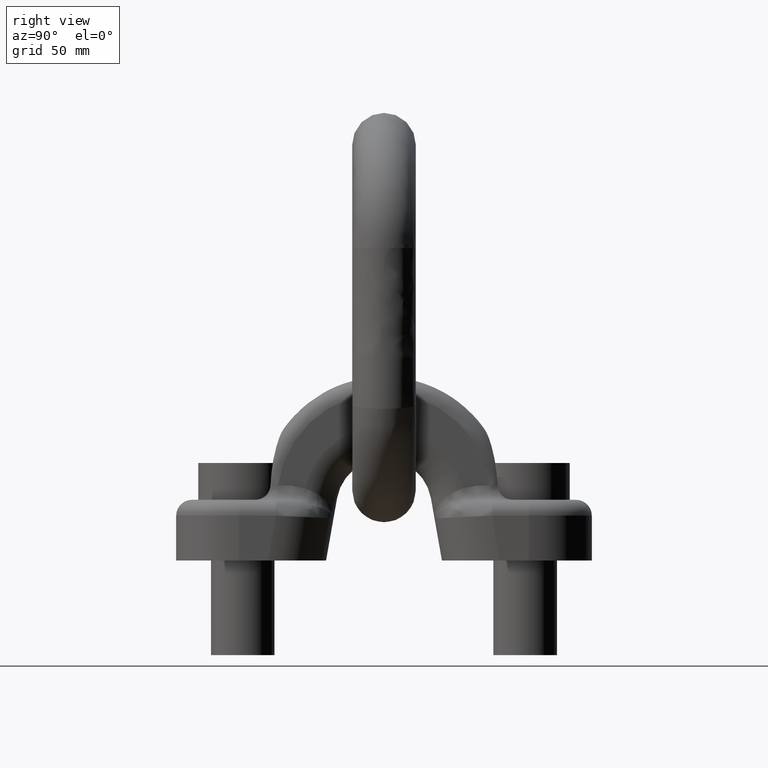
[diagram: clean part render]
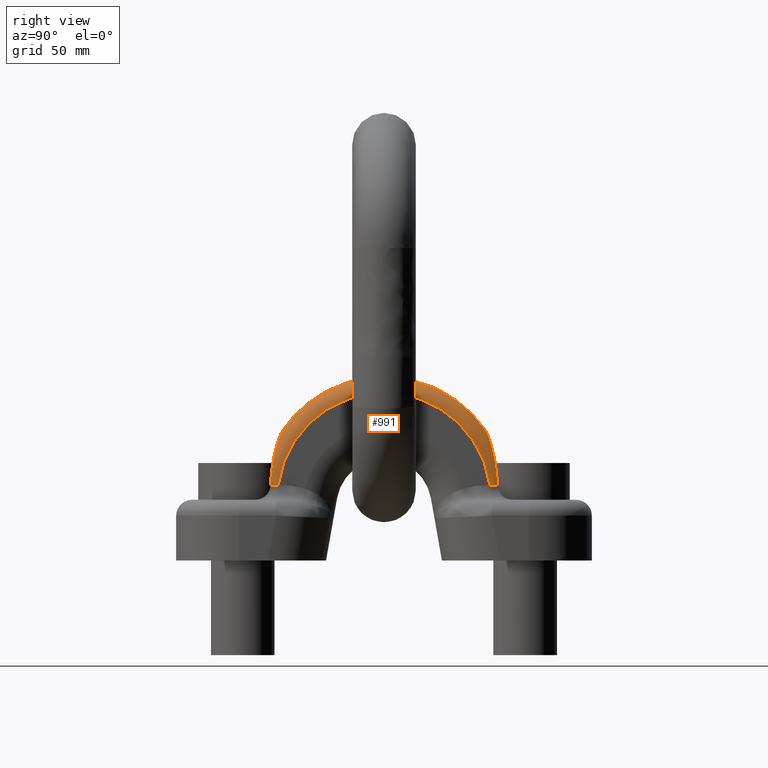
[diagram: same view with one face highlighted and labeled with its STEP entity id]
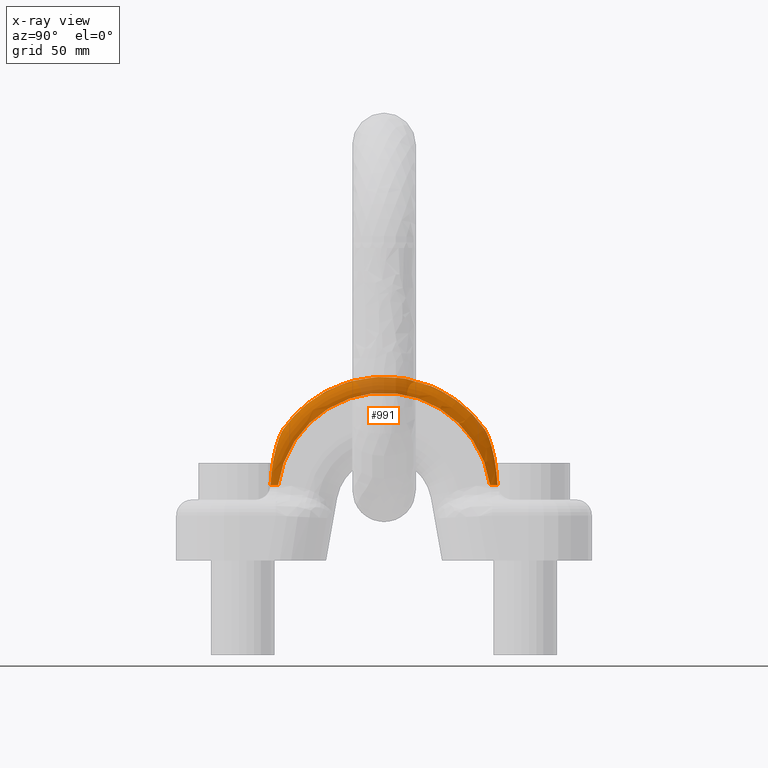
[diagram: x-ray of the same camera — body ghosted, the highlighted face saturated]
A machine part, right view. The second image highlights one B-rep face of the part: STEP entity #991.
The next image is the same camera in x-ray: the body ghosted, the highlighted face saturated — about 17% of this face is hidden behind the body in this view.
In plain terms, the highlighted toroidal blend (fillet) surface has major radius 75.75 mm and minor (blend) radius 11.25 mm.
Its self-contained STEP definition (entity closure, byte-faithful):
#831=TOROIDAL_SURFACE('',#3641,75.75,11.25);
#839=FACE_OUTER_BOUND('',#1526,.T.);
#991=ADVANCED_FACE('',(#839),#831,.T.);
#1526=EDGE_LOOP('',(#2127,#2128,#2129,#2130,#2131,#2132,#2133,#2134,#2135,
#2136,#2137,#2138,#2139,#2140));
#1763=B_SPLINE_CURVE_WITH_KNOTS('',3,(#4961,#4962,#4963,#4964),
 .UNSPECIFIED.,.F.,.F.,(4,4),(0.,1.),.UNSPECIFIED.);
#1764=B_SPLINE_CURVE_WITH_KNOTS('',3,(#4965,#4966,#4967,#4968,#4969,#4970,
#4971,#4972,#4973,#4974),.UNSPECIFIED.,.F.,.F.,(4,2,2,2,4),(0.,0.500000000000001,
0.75,0.875,1.),.UNSPECIFIED.);
#1765=B_SPLINE_CURVE_WITH_KNOTS('',3,(#4976,#4977,#4978,#4979),
 .UNSPECIFIED.,.F.,.F.,(4,4),(0.,1.),.UNSPECIFIED.);
#1766=B_SPLINE_CURVE_WITH_KNOTS('',3,(#4981,#4982,#4983,#4984),
 .UNSPECIFIED.,.F.,.F.,(4,4),(0.,1.),.UNSPECIFIED.);
#1767=B_SPLINE_CURVE_WITH_KNOTS('',3,(#4988,#4989,#4990,#4991),
 .UNSPECIFIED.,.F.,.F.,(4,4),(0.,1.),.UNSPECIFIED.);
#1768=B_SPLINE_CURVE_WITH_KNOTS('',3,(#4993,#4994,#4995,#4996),
 .UNSPECIFIED.,.F.,.F.,(4,4),(0.,1.),.UNSPECIFIED.);
#1769=B_SPLINE_CURVE_WITH_KNOTS('',3,(#4998,#4999,#5000,#5001,#5002,#5003,
#5004,#5005,#5006,#5007),.UNSPECIFIED.,.F.,.F.,(4,2,2,2,4),(0.,0.5,0.75,
0.875,1.),.UNSPECIFIED.);
#1770=B_SPLINE_CURVE_WITH_KNOTS('',3,(#5008,#5009,#5010,#5011,#5012,#5013),
 .UNSPECIFIED.,.F.,.F.,(4,2,4),(0.,0.5,1.),.UNSPECIFIED.);
#1771=B_SPLINE_CURVE_WITH_KNOTS('',3,(#5014,#5015,#5016,#5017),
 .UNSPECIFIED.,.F.,.F.,(4,4),(0.,1.),.UNSPECIFIED.);
#1974=CIRCLE('',#3628,87.);
#1977=CIRCLE('',#3632,87.);
#1982=CIRCLE('',#3637,87.);
#1983=CIRCLE('',#3639,86.9969377547195);
#1984=CIRCLE('',#3640,75.75);
#2127=ORIENTED_EDGE('',*,*,#3240,.T.);
#2128=ORIENTED_EDGE('',*,*,#3241,.T.);
#2129=ORIENTED_EDGE('',*,*,#3239,.F.);
#2130=ORIENTED_EDGE('',*,*,#3242,.F.);
#2131=ORIENTED_EDGE('',*,*,#3243,.T.);
#2132=ORIENTED_EDGE('',*,*,#3244,.T.);
#2133=ORIENTED_EDGE('',*,*,#3245,.F.);
#2134=ORIENTED_EDGE('',*,*,#3246,.T.);
#2135=ORIENTED_EDGE('',*,*,#3247,.T.);
#2136=ORIENTED_EDGE('',*,*,#3248,.T.);
#2137=ORIENTED_EDGE('',*,*,#3229,.F.);
#2138=ORIENTED_EDGE('',*,*,#3249,.T.);
#2139=ORIENTED_EDGE('',*,*,#3216,.F.);
#2140=ORIENTED_EDGE('',*,*,#3250,.T.);
#2935=VERTEX_POINT('',#4710);
#2943=VERTEX_POINT('',#4747);
#2944=VERTEX_POINT('',#4749);
#2956=VERTEX_POINT('',#4829);
#2957=VERTEX_POINT('',#4831);
#2966=VERTEX_POINT('',#4955);
#2967=VERTEX_POINT('',#4959);
#2968=VERTEX_POINT('',#4960);
#2969=VERTEX_POINT('',#4975);
#2970=VERTEX_POINT('',#4980);
#2971=VERTEX_POINT('',#4985);
#2972=VERTEX_POINT('',#4987);
#2973=VERTEX_POINT('',#4992);
#2974=VERTEX_POINT('',#4997);
#3216=EDGE_CURVE('',#2943,#2944,#1974,.T.);
#3229=EDGE_CURVE('',#2956,#2957,#1977,.T.);
#3239=EDGE_CURVE('',#2966,#2935,#1982,.T.);
#3240=EDGE_CURVE('',#2967,#2968,#1983,.T.);
#3241=EDGE_CURVE('',#2968,#2935,#1763,.T.);
#3242=EDGE_CURVE('',#2969,#2966,#1764,.T.);
#3243=EDGE_CURVE('',#2969,#2970,#1765,.T.);
#3244=EDGE_CURVE('',#2970,#2971,#1766,.T.);
#3245=EDGE_CURVE('',#2972,#2971,#1984,.T.);
#3246=EDGE_CURVE('',#2972,#2973,#1767,.T.);
#3247=EDGE_CURVE('',#2973,#2974,#1768,.T.);
#3248=EDGE_CURVE('',#2974,#2957,#1769,.T.);
#3249=EDGE_CURVE('',#2956,#2944,#1770,.T.);
#3250=EDGE_CURVE('',#2943,#2967,#1771,.T.);
#3628=AXIS2_PLACEMENT_3D('',#4748,#3863,#3864);
#3632=AXIS2_PLACEMENT_3D('',#4830,#3872,#3873);
#3637=AXIS2_PLACEMENT_3D('',#4956,#3882,#3883);
#3639=AXIS2_PLACEMENT_3D('',#4958,#3886,#3887);
#3640=AXIS2_PLACEMENT_3D('',#4986,#3888,#3889);
#3641=AXIS2_PLACEMENT_3D('',#5018,#3890,#3891);
#3863=DIRECTION('',(-1.,0.,0.));
#3864=DIRECTION('',(0.,0.,-1.));
#3872=DIRECTION('',(-1.,0.,0.));
#3873=DIRECTION('',(0.,0.,-1.));
#3882=DIRECTION('',(-1.,0.,0.));
#3883=DIRECTION('',(0.,0.,-1.));
#3886=DIRECTION('',(1.,0.,0.));
#3887=DIRECTION('',(0.,0.,1.));
#3888=DIRECTION('',(1.,0.,0.));
#3889=DIRECTION('',(0.,0.,-1.));
#3890=DIRECTION('',(1.,0.,0.));
#3891=DIRECTION('',(0.,0.,-1.));
#4710=CARTESIAN_POINT('',(17.25,-43.1366833930658,118.552806339979));
#4747=CARTESIAN_POINT('',(17.25,-40.5932206210889,119.949271858853));
#4748=CARTESIAN_POINT('',(17.25,0.,43.));
#4749=CARTESIAN_POINT('',(17.25,33.2073466621959,123.413134049462));
#4829=CARTESIAN_POINT('',(17.25,39.5429185306378,120.494242328571));
#4830=CARTESIAN_POINT('',(17.25,0.,43.));
#4831=CARTESIAN_POINT('',(17.25,71.2826272093007,92.877721060007));
#4955=CARTESIAN_POINT('',(17.25,-71.2826272093007,92.877721060007));
#4956=CARTESIAN_POINT('',(17.25,0.,43.));
#4958=CARTESIAN_POINT('',(17.5124712202609,0.,43.));
#4959=CARTESIAN_POINT('',(17.5124712202609,-40.5932206210889,119.945809621487));
#4960=CARTESIAN_POINT('',(17.5124712202609,-43.1366833930658,118.549280106067));
#4961=CARTESIAN_POINT('',(17.5124712202609,-43.1366833930658,118.549280106067));
#4962=CARTESIAN_POINT('',(17.4250580472614,-43.1366833930658,118.551629186672));
#4963=CARTESIAN_POINT('',(17.3375677551409,-43.1366833930658,118.552806339979));
#4964=CARTESIAN_POINT('',(17.25,-43.1366833930658,118.552806339979));
#4965=CARTESIAN_POINT('',(27.1678318460977,-80.4000277351686,53.324975098353));
#4966=CARTESIAN_POINT('',(26.8881650384775,-80.0123771456832,60.4442994812256));
#4967=CARTESIAN_POINT('',(26.3380850451239,-79.2082631706933,67.4857167356981));
#4968=CARTESIAN_POINT('',(24.4121393939832,-77.0384514619644,77.8207231953873));
#4969=CARTESIAN_POINT('',(23.5946511509852,-76.165259472994,81.1840005794869));
#4970=CARTESIAN_POINT('',(21.8131749480881,-74.562360498354,85.9956507505813));
#4971=CARTESIAN_POINT('',(21.1308716576881,-73.9842020627833,87.5437093560862));
#4972=CARTESIAN_POINT('',(19.4733943669799,-72.7213931596232,90.4373400232924));
#4973=CARTESIAN_POINT('',(18.4962553074193,-72.0312299526527,91.8078572180325));
#4974=CARTESIAN_POINT('',(17.2500000000004,-71.2826272093008,92.8777210600075));
#4975=CARTESIAN_POINT('',(27.1678318460914,-80.4000277351804,53.3249750983539));
#4976=CARTESIAN_POINT('',(27.1678318460914,-80.4000277351804,53.3249750983539));
#4977=CARTESIAN_POINT('',(27.9242878728406,-78.9826855689963,53.2699479115421));
#4978=CARTESIAN_POINT('',(28.3692265737655,-77.4134836572612,53.1953147856763));
#4979=CARTESIAN_POINT('',(28.474922511485,-75.7977078577623,53.3475174865511));
#4980=CARTESIAN_POINT('',(28.474922511485,-75.7977078577623,53.3475174865511));
#4981=CARTESIAN_POINT('',(28.474922511485,-75.7977078577623,53.3475174865511));
#4982=CARTESIAN_POINT('',(28.4916714117096,-75.5416671031688,53.3716359901178));
#4983=CARTESIAN_POINT('',(28.5,-75.2851376510676,53.3979508423251));
#4984=CARTESIAN_POINT('',(28.5,-75.0290019383752,53.4264743864495));
#4985=CARTESIAN_POINT('',(28.5,-75.0290019383752,53.4264743864495));
#4986=CARTESIAN_POINT('',(28.5,0.,43.));
#4987=CARTESIAN_POINT('',(28.5,75.0290019383752,53.4264743864495));
#4988=CARTESIAN_POINT('',(28.5,75.0290019383752,53.4264743864495));
#4989=CARTESIAN_POINT('',(28.5,75.2851376510676,53.3979508423251));
#4990=CARTESIAN_POINT('',(28.4916714117096,75.5416671031688,53.3716359901178));
#4991=CARTESIAN_POINT('',(28.474922511485,75.7977078577623,53.3475174865511));
#4992=CARTESIAN_POINT('',(28.474922511485,75.7977078577623,53.3475174865511));
#4993=CARTESIAN_POINT('',(28.474922511485,75.7977078577623,53.3475174865511));
#4994=CARTESIAN_POINT('',(28.3692789966666,77.4126822673795,53.195390274927));
#4995=CARTESIAN_POINT('',(27.9230991296083,78.9849128708425,53.2700343847717));
#4996=CARTESIAN_POINT('',(27.1678318460976,80.4000277351686,53.3249750983534));
#4997=CARTESIAN_POINT('',(27.1678318460976,80.4000277351686,53.3249750983534));
#4998=CARTESIAN_POINT('',(27.1678318460976,80.4000277351686,53.3249750983534));
#4999=CARTESIAN_POINT('',(26.8881650384775,80.0123771456831,60.4442994812259));
#5000=CARTESIAN_POINT('',(26.3380850451238,79.2082631706933,67.4857167356983));
#5001=CARTESIAN_POINT('',(24.4121393939832,77.0384514619644,77.8207231953875));
#5002=CARTESIAN_POINT('',(23.5946511509852,76.1652594729939,81.184000579487));
#5003=CARTESIAN_POINT('',(21.8131749480881,74.562360498354,85.9956507505814));
#5004=CARTESIAN_POINT('',(21.1308716576881,73.9842020627833,87.5437093560863));
#5005=CARTESIAN_POINT('',(19.4733943669799,72.7213931596232,90.4373400232924));
#5006=CARTESIAN_POINT('',(18.4962553074194,72.0312299526527,91.8078572180325));
#5007=CARTESIAN_POINT('',(17.2500000000005,71.2826272093008,92.8777210600075));
#5008=CARTESIAN_POINT('',(17.25,39.5429185306378,120.494242328571));
#5009=CARTESIAN_POINT('',(17.6802585061665,38.5472931256662,121.002279223866));
#5010=CARTESIAN_POINT('',(17.8473126959543,37.4785794644296,121.50481230448));
#5011=CARTESIAN_POINT('',(17.8566322802826,35.3213496322544,122.498206617115));
#5012=CARTESIAN_POINT('',(17.7030901727545,34.2329649352332,122.989595507675));
#5013=CARTESIAN_POINT('',(17.25,33.207346662196,123.413134049462));
#5014=CARTESIAN_POINT('',(17.25,-40.5932206210889,119.949271858853));
#5015=CARTESIAN_POINT('',(17.3374504455103,-40.5932206210889,119.949271858853));
#5016=CARTESIAN_POINT('',(17.4249408044386,-40.5932206210889,119.948119160925));
#5017=CARTESIAN_POINT('',(17.5124712202609,-40.5932206210889,119.945809621487));
#5018=CARTESIAN_POINT('',(17.25,0.,43.));